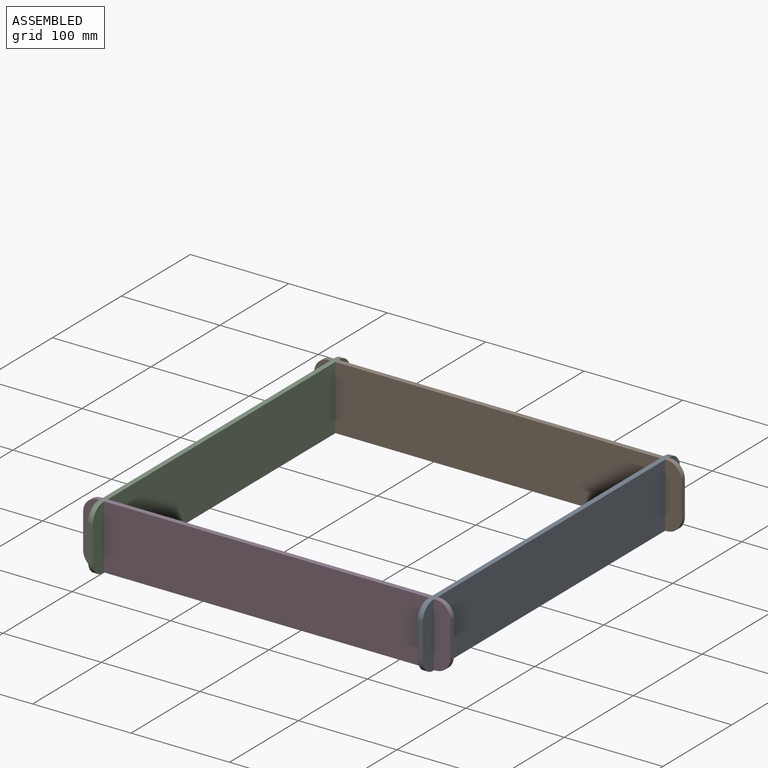
[diagram: assembled view]
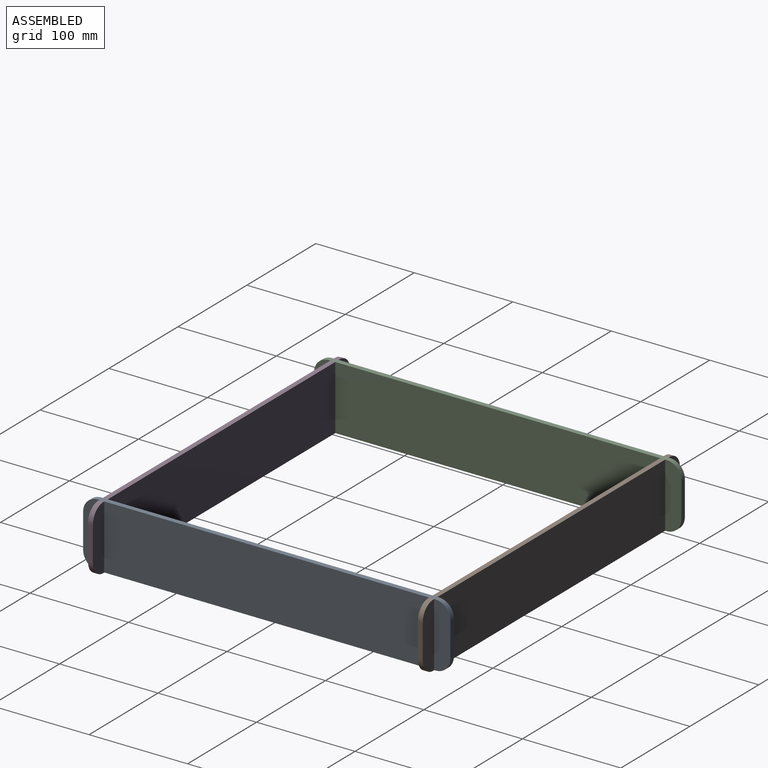
[diagram: assembled view, second angle]
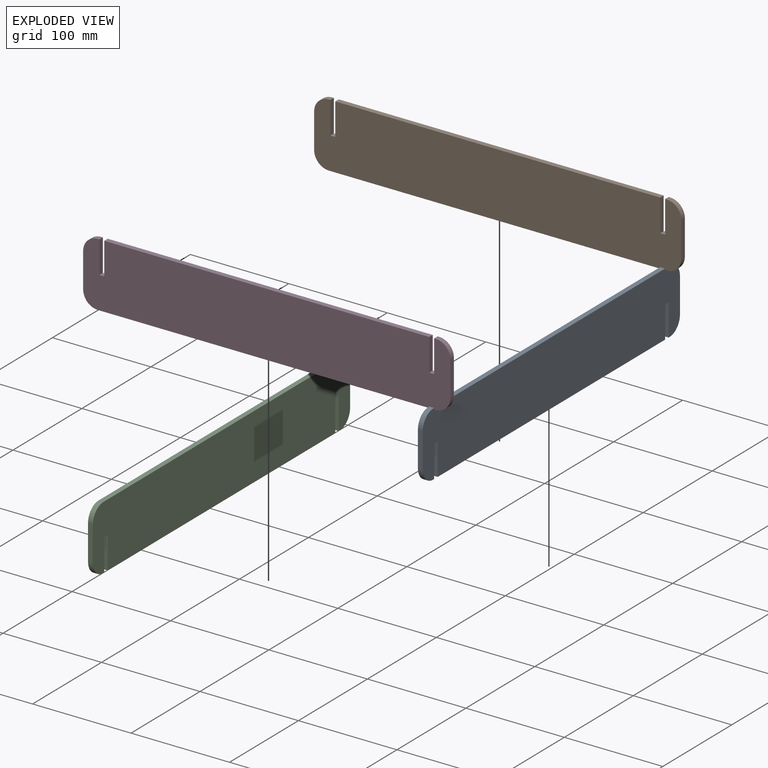
[diagram: exploded view]
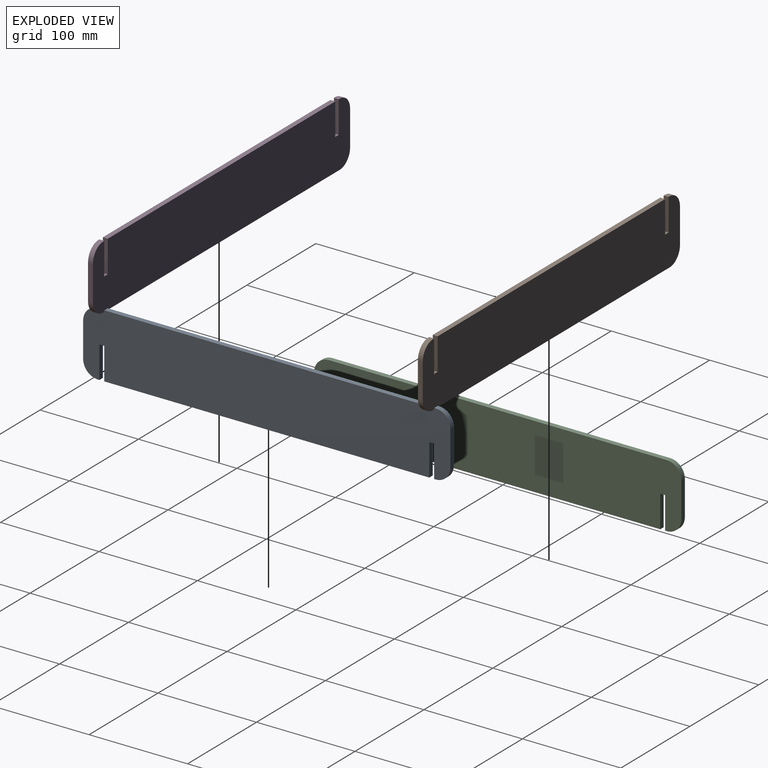
[diagram: exploded view, second angle]
ASSEMBLY  parts=4 mates=3
PART A: 18 faces, bbox 373x65.3x5 mm
  f0: plane 5x5mm, normal (0,-1,0), area 25mm2, adj f1,f15,f16,f17
  f1: plane 32.63x5mm, normal (-1,0,0), area 163.1mm2, adj f0,f2,f16,f17
  f2: plane 330x5mm, normal (0,-1,0), area 1650mm2, adj f1,f3,f16,f17
  f3: plane 32.63x5mm, normal (1,0,0), area 163.1mm2, adj f2,f4,f16,f17
  f4: plane 5x5mm, normal (0,-1,0), area 25mm2, adj f3,f5,f16,f17
  f5: plane 32.63x5mm, normal (-1,0,0), area 163.1mm2, adj f4,f6,f16,f17
  f6: plane 5x1.5mm, normal (0,-1,0), area 7.5mm2, adj f5,f7,f16,f17
  f7: cylinder r=15mm len=15mm, axis (0,0,-1), area 117.8mm2, adj f6,f8,f16,f17
  f8: plane 35.25x5mm, normal (1,0,0), area 176.2mm2, adj f7,f9,f16,f17
  f9: cylinder r=15mm len=15mm, axis (0,0,-1), area 117.8mm2, adj f8,f10,f16,f17
  f10: plane 343x5mm, normal (0,1,0), area 1715mm2, adj f9,f11,f16,f17
  f11: cylinder r=15mm len=15mm, axis (0,0,-1), area 117.8mm2, adj f10,f12,f16,f17
  f12: plane 35.25x5mm, normal (-1,0,0), area 176.2mm2, adj f11,f13,f16,f17
  f13: cylinder r=15mm len=15mm, axis (0,0,-1), area 117.8mm2, adj f12,f14,f16,f17
  f14: plane 5x1.5mm, normal (0,-1,0), area 7.5mm2, adj f13,f15,f16,f17
  f15: plane 32.63x5mm, normal (1,0,0), area 163.1mm2, adj f0,f14,f16,f17
  f16: plane 373x65.25mm, normal (0,0,1), area 23818.9mm2, adj f0,f1,f2,f3,f4,f5,f6,f7
  f17: plane 373x65.25mm, normal (0,0,-1), area 23818.9mm2, adj f0,f1,f2,f3,f4,f5,f6,f7
PART B: same geometry as A
PART C: same geometry as A
PART D: same geometry as A
PLACE A rot(axis=(0.58,0.58,0.58),120deg) t=(340.32,2.16,-15.63)mm
PLACE B rot(axis=(-1,0,0),90deg) t=(175.32,167.16,-15.63)mm
PLACE C rot(axis=(0.58,0.58,0.58),120deg) t=(5.32,2.16,-15.63)mm
PLACE D rot(axis=(-1,0,0),90deg) t=(175.32,-167.84,-15.63)mm
MATE fastened B.f0 <-> C.f4  axis (0,0,1) through (7.82,169.66,-15.63)mm
MATE fastened A.f0 <-> D.f4  axis (0,0,-1) through (342.82,-165.34,-15.63)mm
MATE fastened C.f0 <-> D.f0  axis (0,0,-1) through (7.82,-165.34,-15.63)mm
